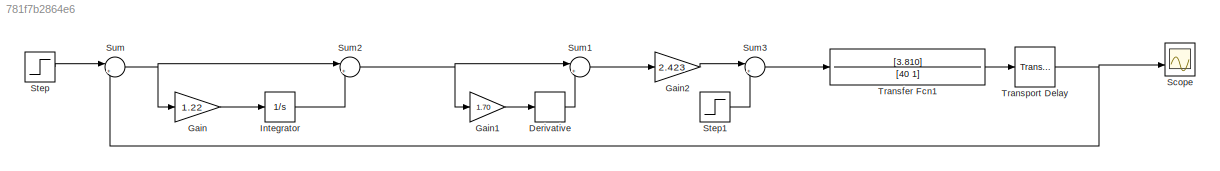
MODEL slx_781f7b2864e6
KIND model
CONFIG AbsTol = auto
CONFIG EnableMultiTasking = off
CONFIG FixedStep = auto
CONFIG MaxStep = auto
CONFIG MinStep = auto
CONFIG RelTol = 1e-3
CONFIG SampleTimeConstraint = Unconstrained
CONFIG SolverName = VariableStepAuto
CONFIG StartTime = 0.0
CONFIG StopTime = 100
BLOCK [Derivative] Derivative
BLOCK [Gain] Gain
  Gain = 1.22
BLOCK [Gain] Gain1
  Gain = 1.70
BLOCK [Gain] Gain2
  Gain = 2.423
BLOCK [Integrator] Integrator
  Ports = [1, 1]
BLOCK [Scope] Scope
  Floating = off
  NumInputPorts = 2
  Ports = [2]
  ScopeSpecificationString = Simulink.scopes.TimeScopeBlockCfg('CurrentConfiguration', extmgr.ConfigurationSet(extmgr.Configuration('Core','General UI',true),extmgr.Configuration('Core','Source UI',true),extmgr.Configuration('Sources','WiredSimulink',true),extmgr.Configuration('Visuals','Time Domain',true,'SerializedDisplays',{struct('MinYLimReal','-360365.52128','MaxYLimReal','219844.48331','YLabelReal','','MinYLimMag','    ...<+1423ch>
BLOCK [Step] Step
  SampleTime = 0
BLOCK [Step] Step1
  SampleTime = 0
BLOCK [Sum] Sum
  Inputs = |+-
  Ports = [2, 1]
BLOCK [Sum] Sum1
  Inputs = |++
  Ports = [2, 1]
BLOCK [Sum] Sum2
  Inputs = |++
  Ports = [2, 1]
BLOCK [Sum] Sum3
  Inputs = |++
  Ports = [2, 1]
BLOCK [TransferFcn] Transfer Fcn1
  Denominator = [40 1]
  Numerator = [3.810]
BLOCK [TransportDelay] Transport Delay
  DelayTime = 2.1
  Ports = [1, 1]
LINE Derivative:1 -> Sum1:2
LINE Gain1:1 -> Derivative:1
LINE Gain2:1 -> Sum3:1
LINE Gain:1 -> Integrator:1
LINE Integrator:1 -> Sum2:2
LINE Step1:1 -> Sum3:2
LINE Step:1 -> Sum:1
LINE Sum1:1 -> Gain2:1
NET Sum2:1 -> Gain1:1, Sum1:1
LINE Sum3:1 -> Transfer Fcn1:1
NET Sum:1 -> Gain:1, Sum2:1
LINE Transfer Fcn1:1 -> Transport Delay:1
NET Transport Delay:1 -> Scope:2, Sum:2
note: NET lines group one-source signal fan-out (src -> all destinations, sorted); 1:1 wires keep LINE
